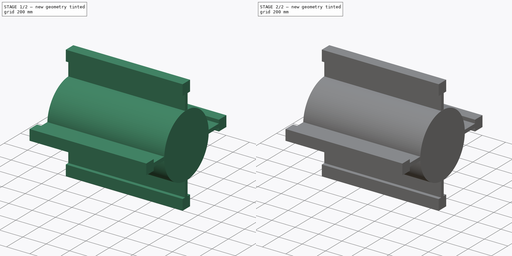
[diagram: build sequence overview — one tinted view per stage of 2, left to right]
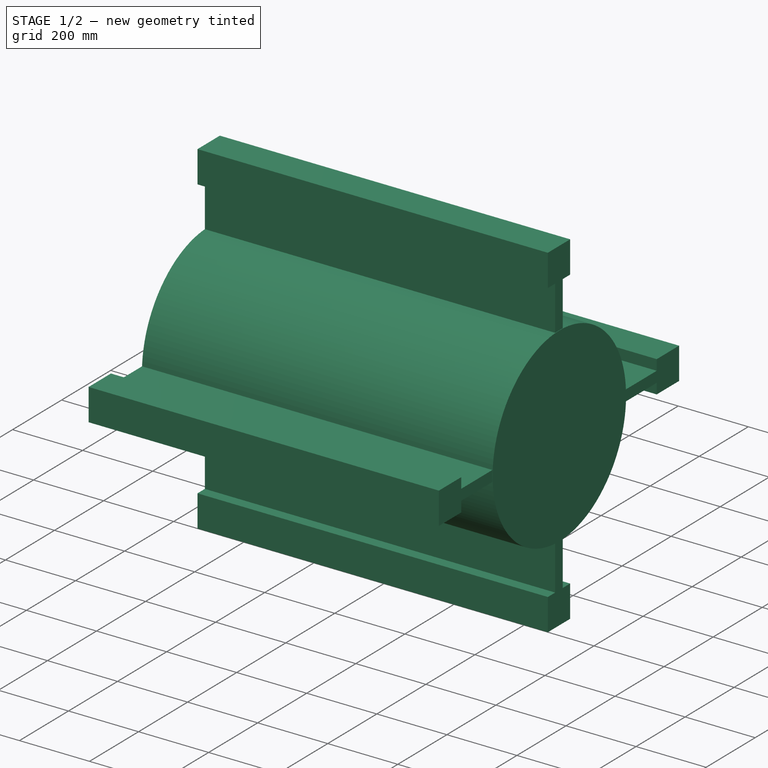
[diagram: stage 1 of 2 — iso view after this stage's code; geometry added in this stage tinted green]
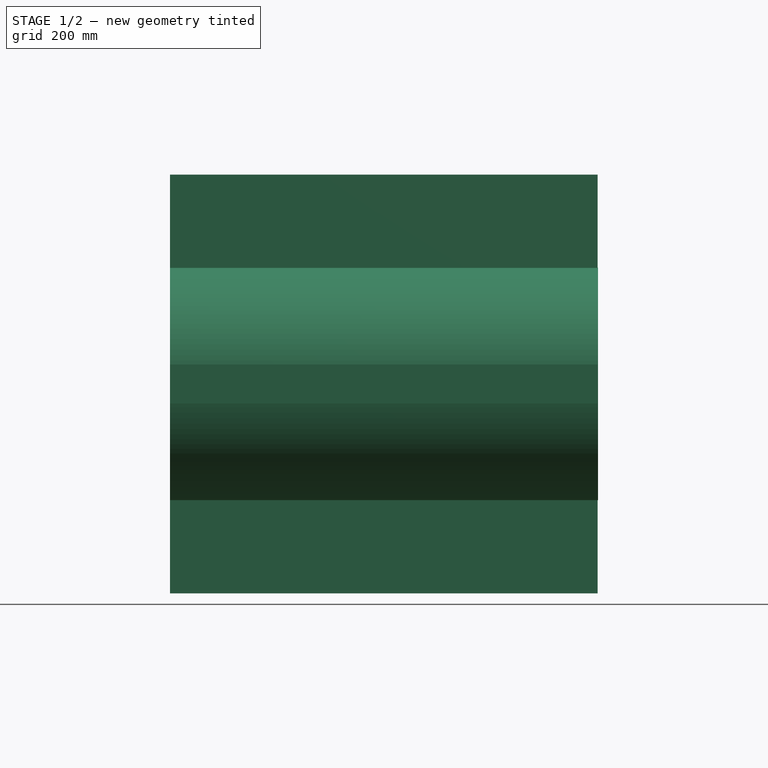
[diagram: stage 1 of 2 — front view after this stage's code; geometry added in this stage tinted green]
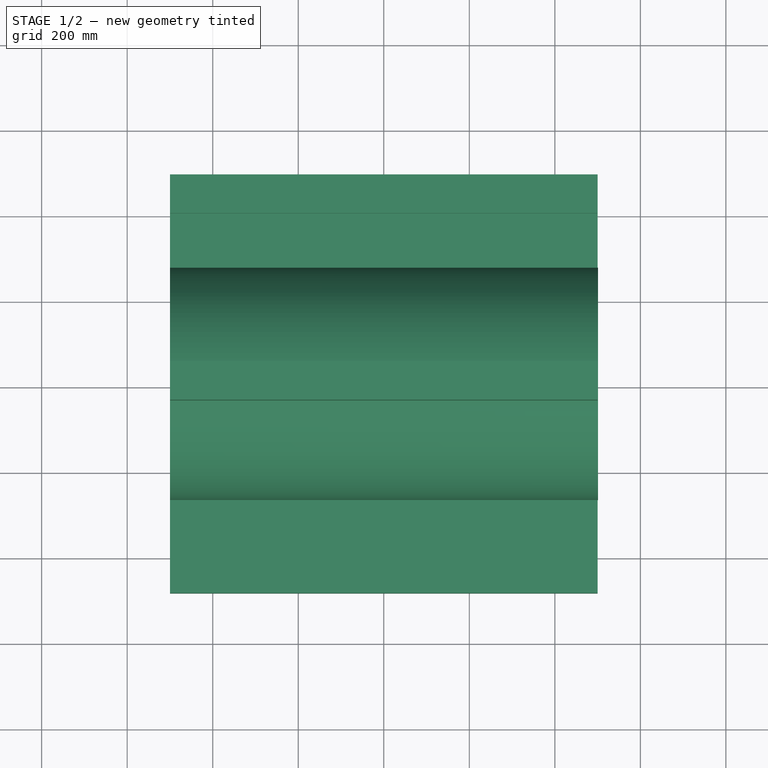
[diagram: stage 1 of 2 — top view after this stage's code; geometry added in this stage tinted green]
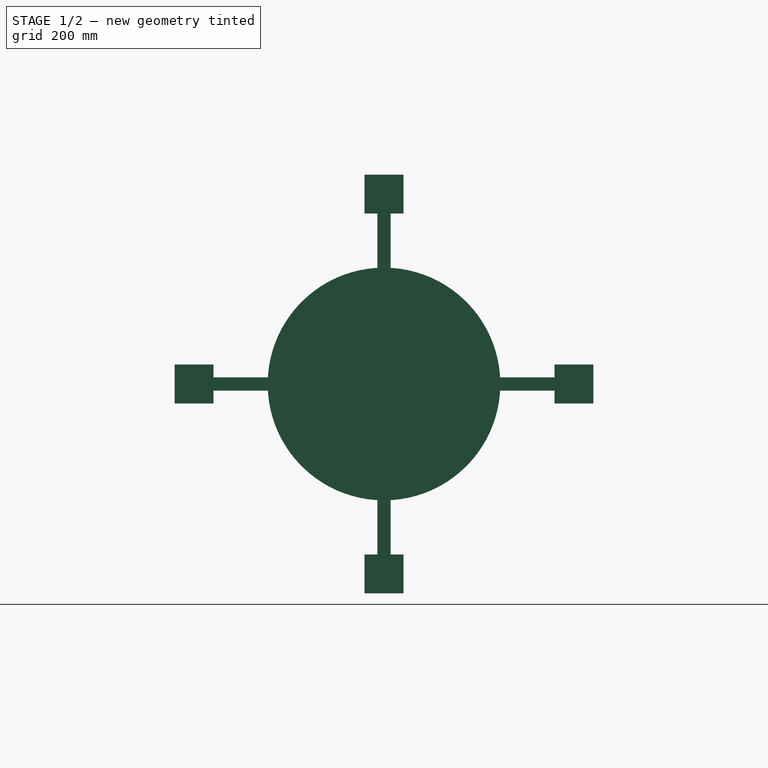
[diagram: stage 1 of 2 — right view after this stage's code; geometry added in this stage tinted green]
FCSTD DOCUMENT
Label: Rotor
objects: Sketcher::SketchObject×3, PartDesign::Pad×3
note: 9 computed .brp shape members not serialized (recipe doc carries the construction recipe); baked Part::Feature solids carry a one-line shape summary decoded from their .brp

FEATURE [PartDesign::Pad] Pad001
  Length = 1000
  MirroredExtent = false
  Sketch = -> Sketch
FEATURE [Sketcher::SketchObject] Sketch002
  Placement = pos=(500,0,0) rot=(0.57735,0.57735,0.57735;2.0944rad)
  sketch-geometry (1):
    g0: Circle CenterX=0 CenterY=0 CenterZ=0 NormalX=0 NormalY=0 NormalZ=1 Radius=272
  constraints (3):
    c: Radius(g0) = 272
    c: DistanceX(g0) = 0
    c: DistanceY(g0) = 0
FEATURE [PartDesign::Pad] Pad002
  Length = 1
  MirroredExtent = false
  Sketch = -> Sketch002
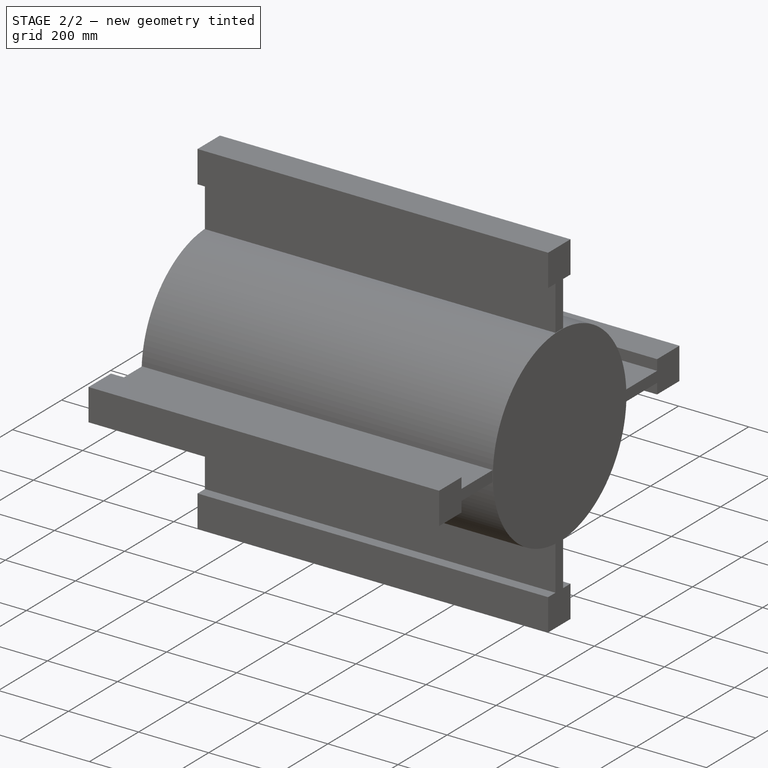
[diagram: stage 2 of 2 — iso view after this stage's code; geometry added in this stage tinted green]
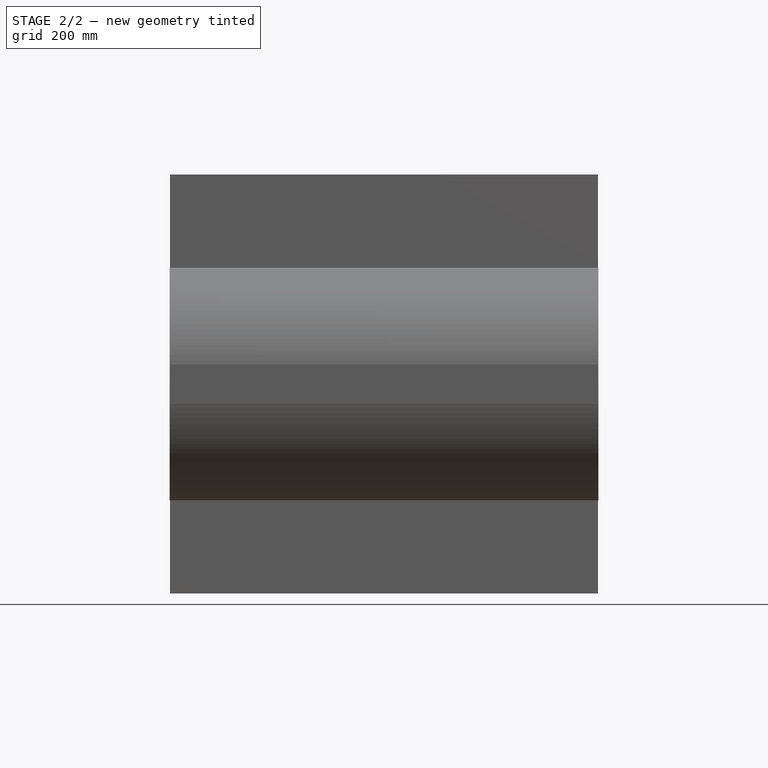
[diagram: stage 2 of 2 — front view after this stage's code; geometry added in this stage tinted green]
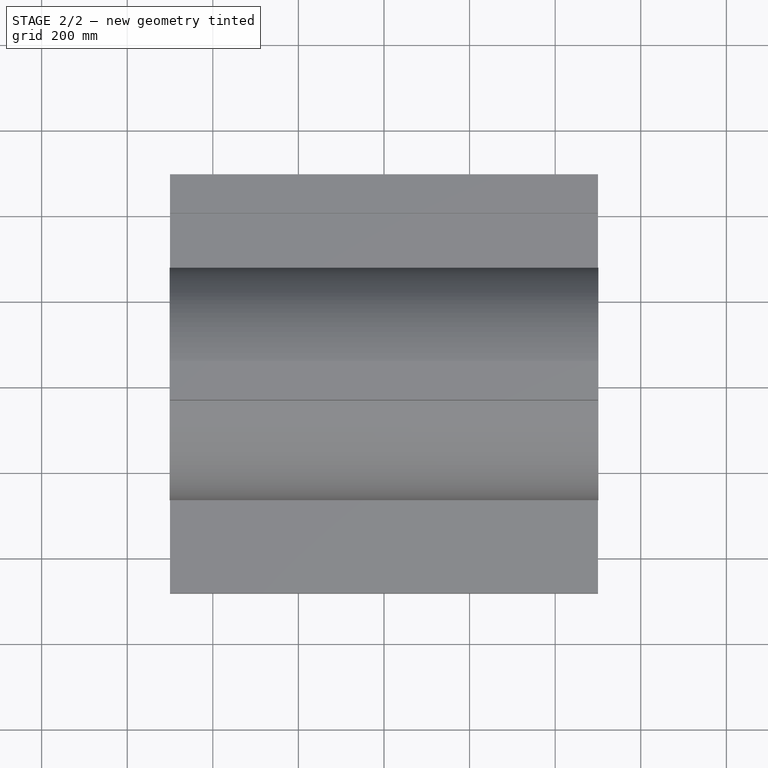
[diagram: stage 2 of 2 — top view after this stage's code; geometry added in this stage tinted green]
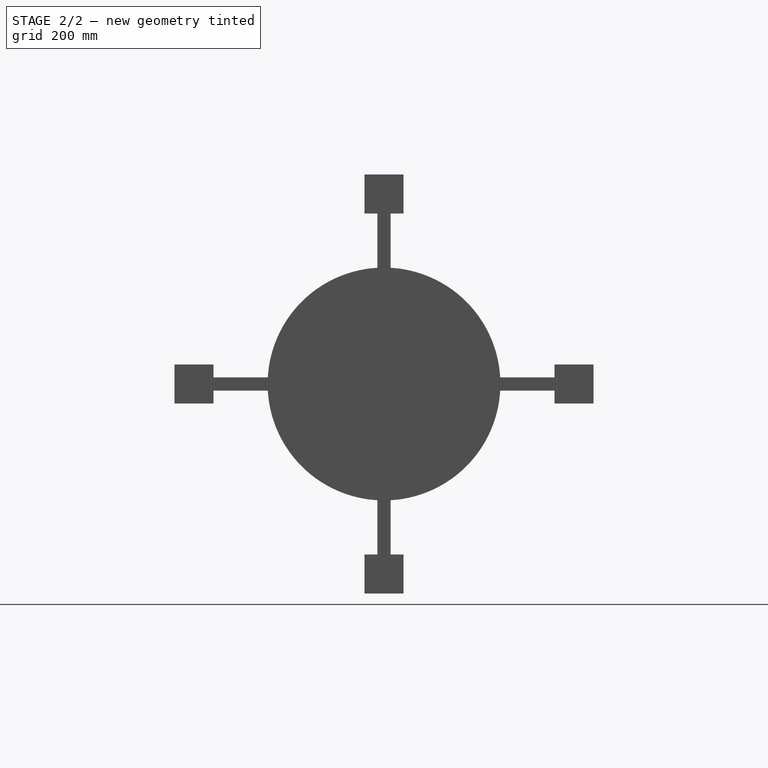
[diagram: stage 2 of 2 — right view after this stage's code; geometry added in this stage tinted green]
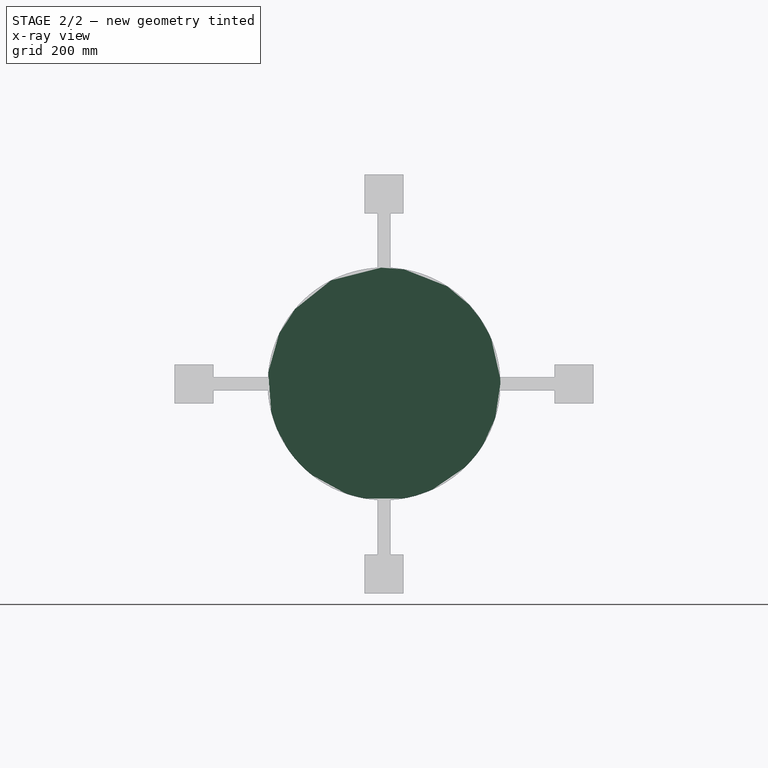
[diagram: stage 2 of 2 — x-ray composite at the right view; earlier geometry ghosted, this stage's added geometry solid]
FEATURE [Sketcher::SketchObject] Sketch
  Placement = pos=(-500,0,0) rot=(0.57735,0.57735,0.57735;2.0944rad)
  sketch-geometry (33):
    g0: ArcOfCircle CenterX=0 CenterY=0 CenterZ=0 NormalX=0 NormalY=0 NormalZ=1 Radius=272 StartAngle=1.62781 EndAngle=3.08458
    g1: LineSegment StartX=-15.5 StartY=271.558 StartZ=0 EndX=-15.5 EndY=398.558 EndZ=0
    g2: LineSegment StartX=-15.5 StartY=398.558 StartZ=0 EndX=-45.5 EndY=398.558 EndZ=0
    g3: LineSegment StartX=-45.5 StartY=398.558 StartZ=0 EndX=-45.5 EndY=489.558 EndZ=0
    g4: LineSegment StartX=-45.5 StartY=489.558 StartZ=0 EndX=45.5 EndY=489.558 EndZ=0
    g5: LineSegment StartX=45.5 StartY=489.558 StartZ=0 EndX=45.5 EndY=398.558 EndZ=0
    g6: LineSegment StartX=45.5 StartY=398.558 StartZ=0 EndX=15.5 EndY=398.558 EndZ=0
    g7: LineSegment StartX=15.5 StartY=398.558 StartZ=0 EndX=15.5 EndY=271.558 EndZ=0
    g8: LineSegment StartX=271.558 StartY=15.5 StartZ=0 EndX=398.558 EndY=15.5 EndZ=0
    g9: LineSegment StartX=398.558 StartY=15.5 StartZ=0 EndX=398.558 EndY=45.5 EndZ=0
    g10: LineSegment StartX=398.558 StartY=45.5 StartZ=0 EndX=489.558 EndY=45.5 EndZ=0
    g11: LineSegment StartX=489.558 StartY=45.5 StartZ=0 EndX=489.558 EndY=-45.5 EndZ=0
    g12: LineSegment StartX=489.558 StartY=-45.5 StartZ=0 EndX=398.558 EndY=-45.5 EndZ=0
    g13: LineSegment StartX=398.558 StartY=-45.5 StartZ=0 EndX=398.558 EndY=-15.5 EndZ=0
    g14: LineSegment StartX=398.558 StartY=-15.5 StartZ=0 EndX=271.558 EndY=-15.5 EndZ=0
    g15: ArcOfCircle CenterX=0 CenterY=0 CenterZ=0 NormalX=0 NormalY=0 NormalZ=1 Radius=272 StartAngle=0.0570162 EndAngle=1.51378
    g16: LineSegment StartX=15.5 StartY=-271.558 StartZ=0 EndX=15.5 EndY=-398.558 EndZ=0
    g17: LineSegment StartX=15.5 StartY=-398.558 StartZ=0 EndX=45.5 EndY=-398.558 EndZ=0
    g18: LineSegment StartX=45.5 StartY=-398.558 StartZ=0 EndX=45.5 EndY=-489.558 EndZ=0
    g19: LineSegment StartX=45.5 StartY=-489.558 StartZ=0 EndX=-45.5 EndY=-489.558 EndZ=0
    g20: LineSegment StartX=-45.5 StartY=-489.558 StartZ=0 EndX=-45.5 EndY=-398.558 EndZ=0
    g21: LineSegment StartX=-45.5 StartY=-398.558 StartZ=0 EndX=-15.5 EndY=-398.558 EndZ=0
    g22: LineSegment StartX=-15.5 StartY=-398.558 StartZ=0 EndX=-15.5 EndY=-271.558 EndZ=0
    g23: ArcOfCircle CenterX=0 CenterY=0 CenterZ=0 NormalX=0 NormalY=0 NormalZ=1 Radius=272 StartAngle=4.76941 EndAngle=6.22617
    g24: LineSegment StartX=-271.558 StartY=-15.5 StartZ=0 EndX=-398.558 EndY=-15.5 EndZ=0
    g25: LineSegment StartX=-398.558 StartY=-15.5 StartZ=0 EndX=-398.558 EndY=-45.5 EndZ=0
    g26: LineSegment StartX=-398.558 StartY=-45.5 StartZ=0 EndX=-489.558 EndY=-45.5 EndZ=0
    g27: LineSegment StartX=-489.558 StartY=-45.5 StartZ=0 EndX=-489.558 EndY=45.5 EndZ=0
    g28: LineSegment StartX=-489.558 StartY=45.5 StartZ=0 EndX=-398.558 EndY=45.5 EndZ=0
    g29: LineSegment StartX=-398.558 StartY=45.5 StartZ=0 EndX=-398.558 EndY=15.5 EndZ=0
    g30: LineSegment StartX=-398.558 StartY=15.5 StartZ=0 EndX=-271.558 EndY=15.5 EndZ=0
    g31: ArcOfCircle CenterX=0 CenterY=0 CenterZ=0 NormalX=0 NormalY=0 NormalZ=1 Radius=272 StartAngle=3.19861 EndAngle=4.65537
    g32: Circle CenterX=0 CenterY=0 CenterZ=0 NormalX=0 NormalY=0 NormalZ=1 Radius=270
  constraints (99):
    c: Radius(g0) = 272
    c: DistanceX(g0) = 0
    c: DistanceY(g0) = 0
    c: Vertical(g1)
    c: Coincident(g2,g1)
    c: Coincident(g3,g2)
    c: Coincident(g4,g3)
    c: Horizontal(g4)
    c: Coincident(g5,g4)
    c: Vertical(g5)
    c: Coincident(g6,g5)
    c: Coincident(g7,g6)
    c: Vertical(g7)
    c: Equal(g7,g1)
    c: Equal(g6,g2)
    c: Equal(g5,g3)
    c: Parallel(g3,g5)
    c: Horizontal(g2)
    c: Distance(g4) = 91
    c: Horizontal(g6)
    c: Coincident(g0,g1)
    c: Coincident(g15,g7)
    c: Equal(g5,g4)
    c: Distance(g1) = 127
    c: Distance(g6) = 30
    c: Horizontal(g8)
    c: Coincident(g9,g8)
    c: Vertical(g9)
    c: Coincident(g9,g10)
    c: Horizontal(g10)
    c: Coincident(g10,g11)
    c: Vertical(g11)
    c: Coincident(g11,g12)
    c: Horizontal(g12)
    c: Coincident(g12,g13)
    c: Vertical(g13)
    c: Coincident(g13,g14)
    c: Horizontal(g14)
    c: Equal(g14,g8)
    c: Equal(g9,g13)
    c: Equal(g10,g12)
    c: Equal(g12,g11)
    c: Equal(g0,g15)
    c: Coincident(g23,g14)
    c: Coincident(g15,g8)
    c: Coincident(g0,g15)
    c: Vertical(g16)
    c: Coincident(g16,g17)
    c: Horizontal(g17)
    c: Coincident(g17,g18)
    c: Vertical(g18)
    c: Coincident(g18,g19)
    c: Horizontal(g19)
    c: Coincident(g19,g20)
    c: Vertical(g20)
    c: Coincident(g20,g21)
    c: Horizontal(g21)
    c: Coincident(g21,g22)
    c: Vertical(g22)
    c: Equal(g0,g23)
    c: Coincident(g31,g22)
    c: Coincident(g23,g16)
    c: Coincident(g0,g23)
    c: Equal(g22,g16)
    c: Equal(g21,g17)
    c: Equal(g20,g18)
    c: Equal(g18,g19)
    c: Equal(g5,g10)
    c: Equal(g7,g14)
    c: Equal(g9,g6)
    c: Equal(g16,g14)
    c: Equal(g18,g12)
    c: Equal(g21,g13)
    c: Horizontal(g24)
    c: Coincident(g24,g25)
    c: Vertical(g25)
    c: Coincident(g25,g26)
    c: Horizontal(g26)
    c: Coincident(g26,g27)
    c: Vertical(g27)
    c: Coincident(g27,g28)
    c: Horizontal(g28)
    c: Coincident(g28,g29)
    c: Vertical(g29)
    c: Coincident(g29,g30)
    c: Horizontal(g30)
    c: Equal(g26,g27)
    c: Equal(g27,g28)
    c: Equal(g29,g25)
    c: Equal(g30,g24)
    c: Equal(g0,g31)
    c: Coincident(g0,g30)
    c: Coincident(g31,g24)
    c: Coincident(g0,g31)
    c: Equal(g30,g1)
    c: Equal(g28,g3)
    c: Equal(g2,g29)
    c: Coincident(g32,g0)
    c: Radius(g32) = 270
FEATURE [Sketcher::SketchObject] Sketch001
  Placement = pos=(-500,0,0) rot=(0.57735,0.57735,0.57735;2.0944rad)
  sketch-geometry (1):
    g0: Circle CenterX=0 CenterY=0 CenterZ=0 NormalX=0 NormalY=0 NormalZ=1 Radius=272
  constraints (3):
    c: Radius(g0) = 272
    c: DistanceX(g0) = 0
    c: DistanceY(g0) = 0
FEATURE [PartDesign::Pad] Pad
  Length = 1
  MirroredExtent = false
  Reversed = true
  Sketch = -> Sketch001
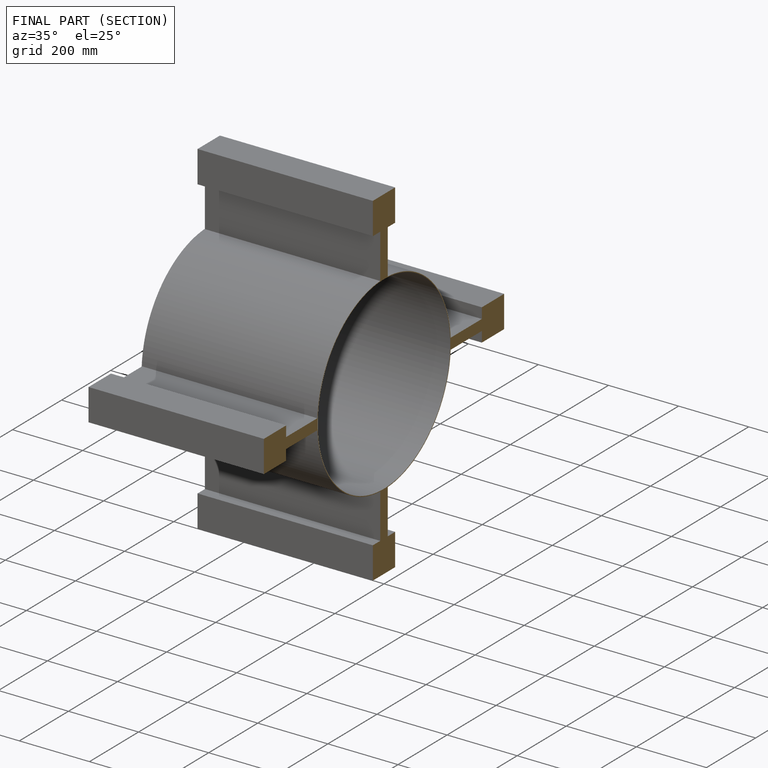
[diagram: finished part — half-section view (interior)]
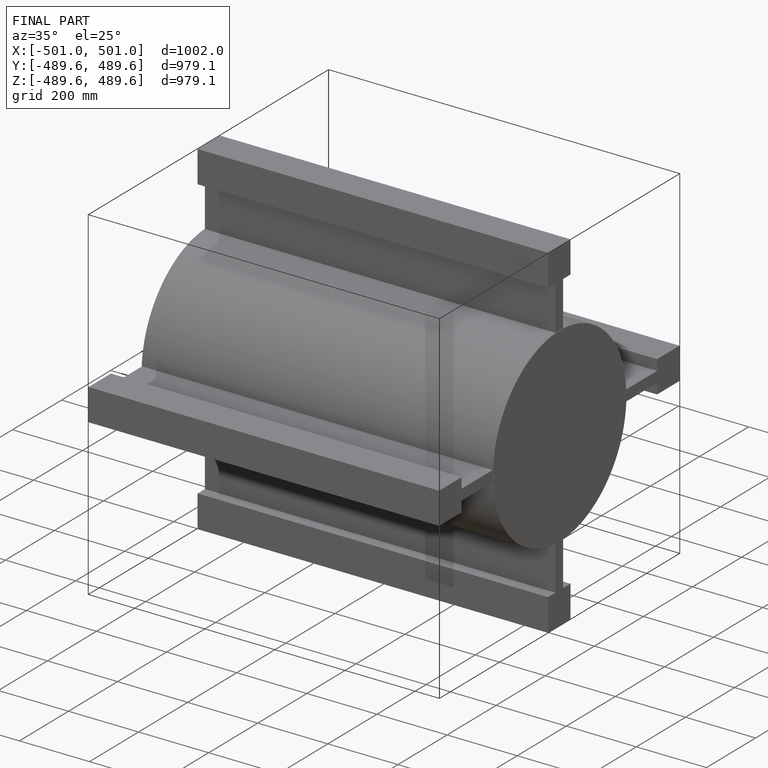
[diagram: finished part — iso view with bounding-box wireframe]
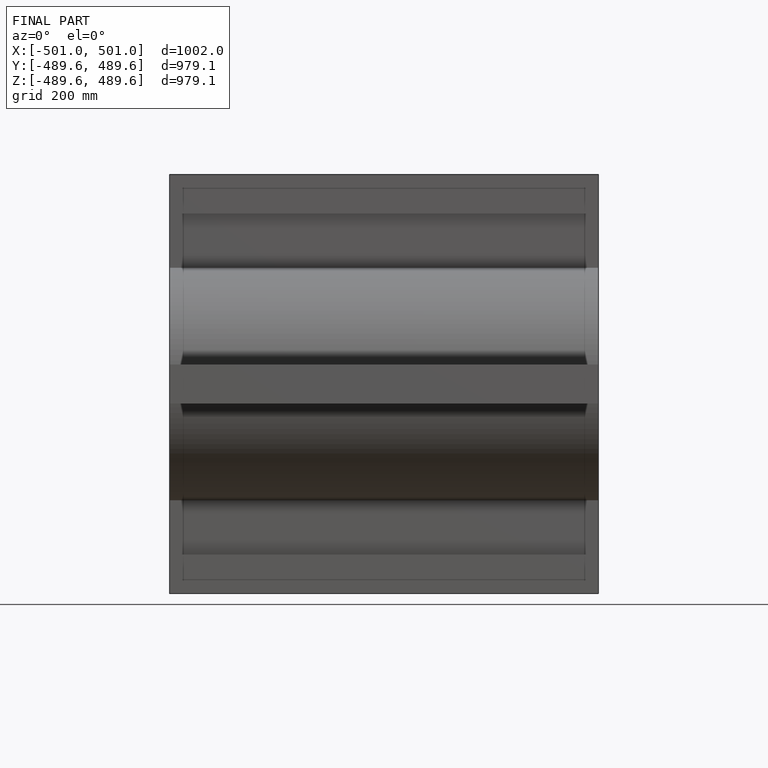
[diagram: finished part — front view with bounding-box wireframe]
